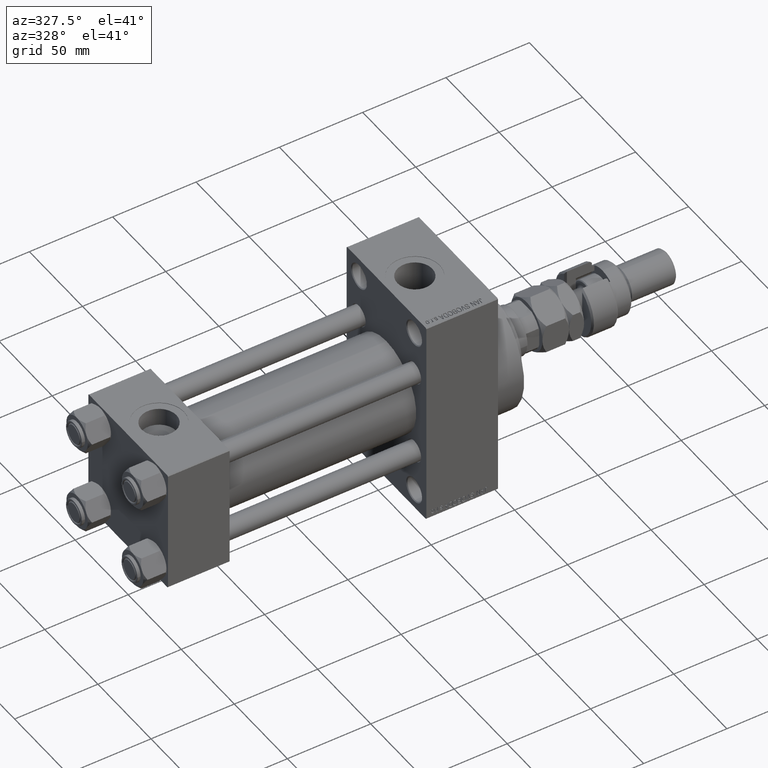
[diagram: clean part render]
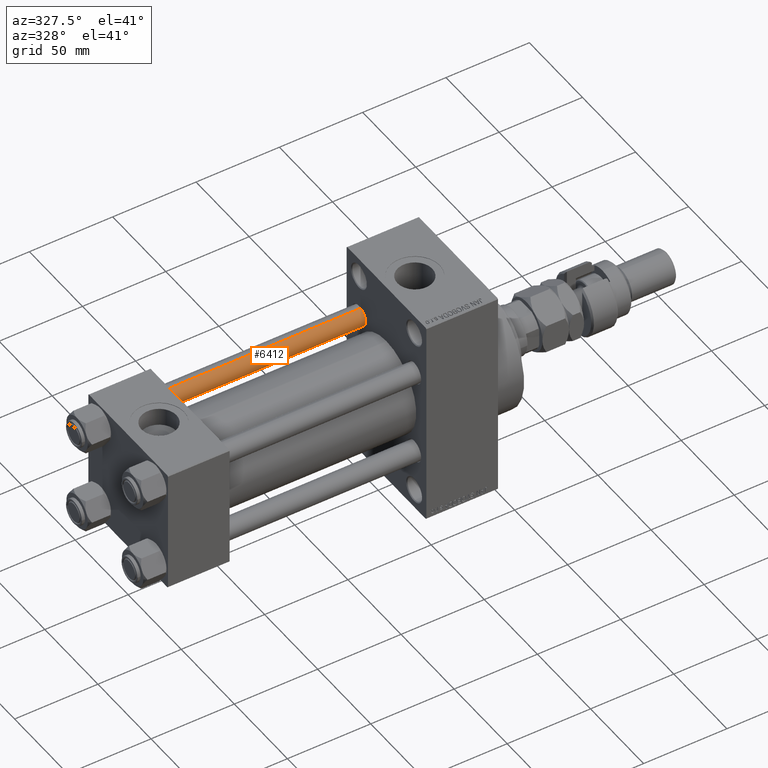
[diagram: same view with one face highlighted and labeled with its STEP entity id]
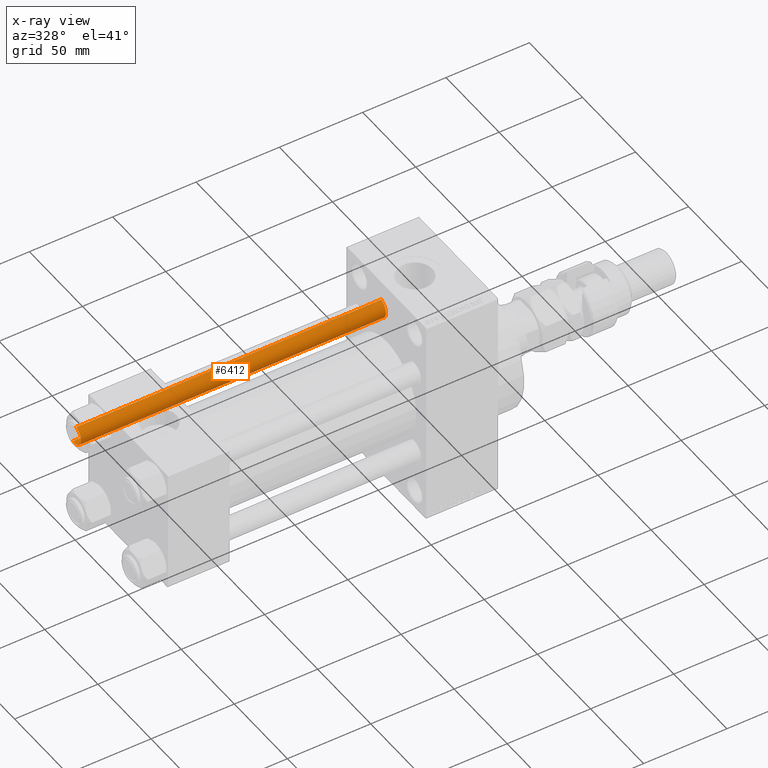
[diagram: x-ray of the same camera — body ghosted, the highlighted face saturated]
A machine part, auxiliary view. The second image highlights one B-rep face of the part: STEP entity #6412.
The next image is the same camera in x-ray: the body ghosted, the highlighted face saturated — about 0% of this face is hidden behind the body in this view.
In plain terms, the highlighted cylindrical surface (edge-blend (fillet) strip) has radius 6 mm, axis along (-1, -0, 0).
Its self-contained STEP definition (entity closure, byte-faithful):
#99 = CARTESIAN_POINT ( 'NONE',  ( 0.000000000000000000, 0.000000000000000000, 0.5000000000000004441 ) ) ;
#994 = VECTOR ( 'NONE', #7781, 1000.000000000000000 ) ;
#2577 = EDGE_CURVE ( 'NONE', #36758, #30358, #22758, .T. ) ;
#2673 = FACE_OUTER_BOUND ( 'NONE', #46266, .T. ) ;
#4924 = DIRECTION ( 'NONE',  ( -0.000000000000000000, -0.000000000000000000, 1.000000000000000000 ) ) ;
#5034 = DIRECTION ( 'NONE',  ( 0.000000000000000000, 0.000000000000000000, -1.000000000000000000 ) ) ;
#5671 = ORIENTED_EDGE ( 'NONE', *, *, #2577, .T. ) ;
#6412 = ADVANCED_FACE ( 'NONE', ( #2673 ), #45346, .T. ) ;
#7194 = VERTEX_POINT ( 'NONE', #16973 ) ;
#7781 = DIRECTION ( 'NONE',  ( -0.000000000000000000, -0.000000000000000000, -1.000000000000000000 ) ) ;
#7841 = CARTESIAN_POINT ( 'NONE',  ( 0.000000000000000000, 0.000000000000000000, 183.5000000000000000 ) ) ;
#10037 = CARTESIAN_POINT ( 'NONE',  ( -6.000000000000000888, 0.000000000000000000, 0.5000000000000004441 ) ) ;
#10545 = CARTESIAN_POINT ( 'NONE',  ( 0.000000000000000000, 0.000000000000000000, 184.0000000000000000 ) ) ;
#12227 = VECTOR ( 'NONE', #39123, 1000.000000000000000 ) ;
#16309 = EDGE_CURVE ( 'NONE', #7194, #36758, #16502, .T. ) ;
#16502 = LINE ( 'NONE', #47477, #12227 ) ;
#16973 = CARTESIAN_POINT ( 'NONE',  ( -6.000000000000000888, 0.000000000000000000, 183.5000000000000000 ) ) ;
#17233 = CIRCLE ( 'NONE', #45613, 6.000000000000000888 ) ;
#19706 = EDGE_CURVE ( 'NONE', #29938, #30358, #27110, .T. ) ;
#22257 = DIRECTION ( 'NONE',  ( -0.000000000000000000, -0.000000000000000000, -1.000000000000000000 ) ) ;
#22758 = CIRCLE ( 'NONE', #49500, 6.000000000000000888 ) ;
#23202 = EDGE_CURVE ( 'NONE', #29938, #7194, #17233, .T. ) ;
#27110 = LINE ( 'NONE', #42592, #994 ) ;
#28916 = CARTESIAN_POINT ( 'NONE',  ( 6.000000000000000888, 7.347880794884120722E-16, 0.5000000000000004441 ) ) ;
#29938 = VERTEX_POINT ( 'NONE', #48261 ) ;
#30358 = VERTEX_POINT ( 'NONE', #28916 ) ;
#31949 = ORIENTED_EDGE ( 'NONE', *, *, #23202, .T. ) ;
#35856 = ORIENTED_EDGE ( 'NONE', *, *, #19706, .F. ) ;
#36758 = VERTEX_POINT ( 'NONE', #10037 ) ;
#37738 = DIRECTION ( 'NONE',  ( -1.000000000000000000, 0.000000000000000000, 0.000000000000000000 ) ) ;
#39096 = AXIS2_PLACEMENT_3D ( 'NONE', #10545, #22257, #37738 ) ;
#39123 = DIRECTION ( 'NONE',  ( -0.000000000000000000, -0.000000000000000000, -1.000000000000000000 ) ) ;
#42592 = CARTESIAN_POINT ( 'NONE',  ( 6.000000000000000888, 7.347880794884120722E-16, 184.0000000000000000 ) ) ;
#42820 = ORIENTED_EDGE ( 'NONE', *, *, #16309, .T. ) ;
#43536 = DIRECTION ( 'NONE',  ( 1.000000000000000000, 0.000000000000000000, 0.000000000000000000 ) ) ;
#43644 = DIRECTION ( 'NONE',  ( 1.000000000000000000, 0.000000000000000000, 0.000000000000000000 ) ) ;
#45346 = CYLINDRICAL_SURFACE ( 'NONE', #39096, 6.000000000000000888 ) ;
#45613 = AXIS2_PLACEMENT_3D ( 'NONE', #7841, #5034, #43644 ) ;
#46266 = EDGE_LOOP ( 'NONE', ( #35856, #31949, #42820, #5671 ) ) ;
#47477 = CARTESIAN_POINT ( 'NONE',  ( -6.000000000000000888, 0.000000000000000000, 184.0000000000000000 ) ) ;
#48261 = CARTESIAN_POINT ( 'NONE',  ( 6.000000000000000888, 7.347880794884120722E-16, 183.5000000000000000 ) ) ;
#49500 = AXIS2_PLACEMENT_3D ( 'NONE', #99, #4924, #43536 ) ;